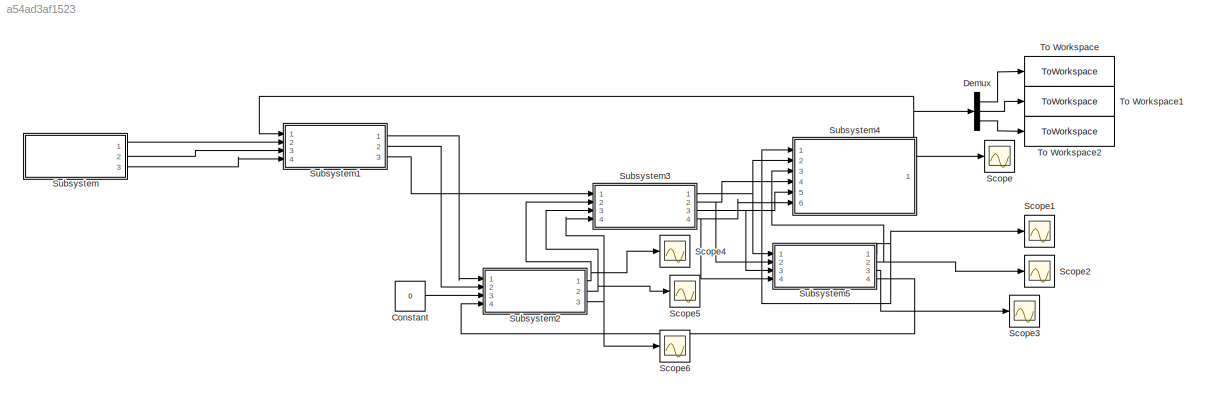
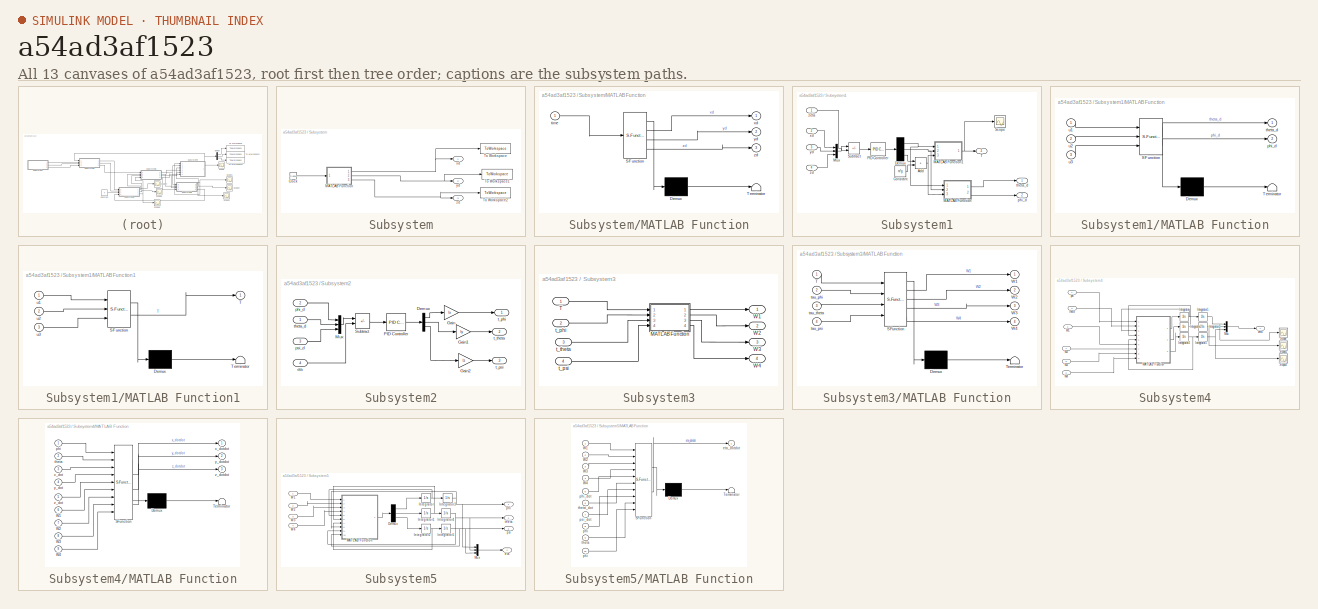
[diagram: thumbnail index - all 13 canvases of the model, root first then tree order]
MODEL slx_a54ad3af1523
KIND model
CONFIG AbsTol = auto
CONFIG EnableMultiTasking = off
CONFIG FixedStep = auto
CONFIG MaxStep = auto
CONFIG MinStep = auto
CONFIG RelTol = 1e-3
CONFIG SampleTimeConstraint = Unconstrained
CONFIG SolverName = VariableStepAuto
CONFIG StartTime = 0.0
CONFIG StopTime = 32
BLOCK [Constant] Constant
  NameLocation = left
  Value = 0
BLOCK [Demux] Demux
  Outputs = 3
  Ports = [1, 3]
BLOCK [Scope] Scope
  Floating = off
  NumInputPorts = 1
  Ports = [1]
  ScopeSpecificationString = Simulink.scopes.TimeScopeBlockCfg('CurrentConfiguration', extmgr.ConfigurationSet(extmgr.Configuration('Core','General UI',true),extmgr.Configuration('Core','Source UI',true),extmgr.Configuration('Sources','WiredSimulink',true),extmgr.Configuration('Visuals','Time Domain',true,'SerializedDisplays',{struct('MinYLimReal','-6.04302','MaxYLimReal','49.57626','YLabelReal','','MinYLimMag','0.00000','Max...<+1395ch>
BLOCK [Scope] Scope1
  Floating = off
  NumInputPorts = 1
  Ports = [1]
  ScopeSpecificationString = Simulink.scopes.TimeScopeBlockCfg('CurrentConfiguration', extmgr.ConfigurationSet(extmgr.Configuration('Core','General UI',true),extmgr.Configuration('Core','Source UI',true),extmgr.Configuration('Sources','WiredSimulink',true,'DataLoggingVariableName','ScopeData1'),extmgr.Configuration('Visuals','Time Domain',true,'SerializedDisplays',{struct('MinYLimReal','-0.30404','MaxYLimReal','0.15066','YLab...<+1371ch>
BLOCK [Scope] Scope2
  Floating = off
  NumInputPorts = 1
  Ports = [1]
  ScopeSpecificationString = Simulink.scopes.TimeScopeBlockCfg('CurrentConfiguration', extmgr.ConfigurationSet(extmgr.Configuration('Core','General UI',true),extmgr.Configuration('Core','Source UI',true),extmgr.Configuration('Sources','WiredSimulink',true,'DataLoggingVariableName','ScopeData2'),extmgr.Configuration('Visuals','Time Domain',true,'SerializedDisplays',{struct('MinYLimReal','-0.15808','MaxYLimReal','0.33995','YLab...<+1371ch>
BLOCK [Scope] Scope3
  Floating = off
  NumInputPorts = 1
  Ports = [1]
  ScopeSpecificationString = Simulink.scopes.TimeScopeBlockCfg('CurrentConfiguration', extmgr.ConfigurationSet(extmgr.Configuration('Core','General UI',true),extmgr.Configuration('Core','Source UI',true),extmgr.Configuration('Sources','WiredSimulink',true,'DataLoggingVariableName','ScopeData3'),extmgr.Configuration('Visuals','Time Domain',true,'SerializedDisplays',{struct('MinYLimReal','-0.0233','MaxYLimReal','0.0205','YLabel...<+1365ch>
BLOCK [Scope] Scope4
  Floating = off
  NumInputPorts = 1
  Ports = [1]
  ScopeSpecificationString = Simulink.scopes.TimeScopeBlockCfg('CurrentConfiguration', extmgr.ConfigurationSet(extmgr.Configuration('Core','General UI',true),extmgr.Configuration('Core','Source UI',true),extmgr.Configuration('Sources','WiredSimulink',true,'DataLoggingVariableName','ScopeData1'),extmgr.Configuration('Visuals','Time Domain',true,'SerializedDisplays',{struct('MinYLimReal','-4.19883','MaxYLimReal','4.6573','YLabe...<+1367ch>
BLOCK [Scope] Scope5
  Floating = off
  NumInputPorts = 1
  Ports = [1]
  ScopeSpecificationString = Simulink.scopes.TimeScopeBlockCfg('CurrentConfiguration', extmgr.ConfigurationSet(extmgr.Configuration('Core','General UI',true),extmgr.Configuration('Core','Source UI',true),extmgr.Configuration('Sources','WiredSimulink',true,'DataLoggingVariableName','ScopeData2'),extmgr.Configuration('Visuals','Time Domain',true,'SerializedDisplays',{struct('MinYLimReal','-2.30515','MaxYLimReal','3.28313','YLab...<+1371ch>
BLOCK [Scope] Scope6
  Floating = off
  NumInputPorts = 1
  Ports = [1]
  ScopeSpecificationString = Simulink.scopes.TimeScopeBlockCfg('CurrentConfiguration', extmgr.ConfigurationSet(extmgr.Configuration('Core','General UI',true),extmgr.Configuration('Core','Source UI',true),extmgr.Configuration('Sources','WiredSimulink',true,'DataLoggingVariableName','ScopeData3'),extmgr.Configuration('Visuals','Time Domain',true,'SerializedDisplays',{struct('MinYLimReal','-0.00333','MaxYLimReal','0.00248','YLab...<+1371ch>
BLOCK [SubSystem] Subsystem
  Ports = [0, 3]
  RequestExecContextInheritance = off
BLOCK [Clock] Subsystem/Clock
BLOCK [SubSystem] Subsystem/MATLAB Function
  ErrorFcn = Stateflow.Translate.translate
  PermitHierarchicalResolution = ExplicitOnly
  Ports = [1, 3]
  RequestExecContextInheritance = off
  SFBlockType = MATLAB Function
  TreatAsAtomicUnit = on
BLOCK [Demux] Subsystem/MATLAB Function/ Demux 
  Outputs = 1
  Ports = [1, 1]
BLOCK [S-Function] Subsystem/MATLAB Function/ SFunction 
  EnableBusSupport = on
  FunctionName = sf_sfun
  PortCounts = [1 4]
  Ports = [1, 4]
  SFcnIsStateOwnerBlock = off
  SFunctionDeploymentMode = off
  Tag = Stateflow S-Function 6
BLOCK [Terminator] Subsystem/MATLAB Function/ Terminator 
BLOCK [Inport] Subsystem/MATLAB Function/time
BLOCK [Outport] Subsystem/MATLAB Function/xd
BLOCK [Outport] Subsystem/MATLAB Function/yd
  Port = 2
BLOCK [Outport] Subsystem/MATLAB Function/zd
  Port = 3
BLOCK [ToWorkspace] Subsystem/To Workspace
  FixptAsFi = on
  MaxDataPoints = inf
  Ports = [1]
  SampleTime = -1
  SaveFormat = Timeseries
  VariableName = xd
BLOCK [ToWorkspace] Subsystem/To Workspace1
  FixptAsFi = on
  MaxDataPoints = inf
  Ports = [1]
  SampleTime = -1
  SaveFormat = Timeseries
  VariableName = yd
BLOCK [ToWorkspace] Subsystem/To Workspace2
  FixptAsFi = on
  MaxDataPoints = inf
  Ports = [1]
  SampleTime = -1
  SaveFormat = Timeseries
  VariableName = zd
BLOCK [Outport] Subsystem/xd
BLOCK [Outport] Subsystem/yd
  Port = 2
BLOCK [Outport] Subsystem/zd
  Port = 3
BLOCK [SubSystem] Subsystem1
  Ports = [4, 3]
  RequestExecContextInheritance = off
BLOCK [Sum] Subsystem1/Add
  IconShape = rectangular
  Ports = [2, 1]
BLOCK [Constant] Subsystem1/Constant
  Value = m*g
BLOCK [Demux] Subsystem1/Demux
  Outputs = 3
  Ports = [1, 3]
BLOCK [SubSystem] Subsystem1/MATLAB Function
  ErrorFcn = Stateflow.Translate.translate
  PermitHierarchicalResolution = ExplicitOnly
  Ports = [3, 2]
  RequestExecContextInheritance = off
  SFBlockType = MATLAB Function
  TreatAsAtomicUnit = on
BLOCK [Demux] Subsystem1/MATLAB Function/ Demux 
  Outputs = 1
  Ports = [1, 1]
BLOCK [S-Function] Subsystem1/MATLAB Function/ SFunction 
  EnableBusSupport = on
  FunctionName = sf_sfun
  PortCounts = [3 3]
  Ports = [3, 3]
  SFcnIsStateOwnerBlock = off
  SFunctionDeploymentMode = off
  Tag = Stateflow S-Function 2
BLOCK [Terminator] Subsystem1/MATLAB Function/ Terminator 
BLOCK [Outport] Subsystem1/MATLAB Function/phi_d
  Port = 2
BLOCK [Outport] Subsystem1/MATLAB Function/theta_d
BLOCK [Inport] Subsystem1/MATLAB Function/u1
BLOCK [Inport] Subsystem1/MATLAB Function/u2
  Port = 2
BLOCK [Inport] Subsystem1/MATLAB Function/u3
  Port = 3
BLOCK [SubSystem] Subsystem1/MATLAB Function1
  ErrorFcn = Stateflow.Translate.translate
  PermitHierarchicalResolution = ExplicitOnly
  Ports = [3, 1]
  RequestExecContextInheritance = off
  SFBlockType = MATLAB Function
  TreatAsAtomicUnit = on
BLOCK [Demux] Subsystem1/MATLAB Function1/ Demux 
  Outputs = 1
  Ports = [1, 1]
BLOCK [S-Function] Subsystem1/MATLAB Function1/ SFunction 
  EnableBusSupport = on
  FunctionName = sf_sfun
  PortCounts = [3 2]
  Ports = [3, 2]
  SFcnIsStateOwnerBlock = off
  SFunctionDeploymentMode = off
  Tag = Stateflow S-Function 1
BLOCK [Terminator] Subsystem1/MATLAB Function1/ Terminator 
BLOCK [Outport] Subsystem1/MATLAB Function1/T
BLOCK [Inport] Subsystem1/MATLAB Function1/u1
BLOCK [Inport] Subsystem1/MATLAB Function1/u2
  Port = 2
BLOCK [Inport] Subsystem1/MATLAB Function1/u3
  Port = 3
BLOCK [Mux] Subsystem1/Mux
  DisplayOption = bar
  Inputs = 3
  Ports = [3, 1]
BLOCK [Reference] Subsystem1/PID Controller  REF=pid_lib/PID Controller
  Ports = [1, 1]
  SourceBlock = pid_lib/PID Controller
  SourceProductBaseCode = SL
  SourceType = PID 1dof
BLOCK [Scope] Subsystem1/Scope
  Floating = off
  NumInputPorts = 1
  Ports = [1]
  ScopeSpecificationString = Simulink.scopes.TimeScopeBlockCfg('CurrentConfiguration', extmgr.ConfigurationSet(extmgr.Configuration('Core','General UI',true),extmgr.Configuration('Core','Source UI',true),extmgr.Configuration('Sources','WiredSimulink',true,'DataLoggingVariableName','ScopeData4'),extmgr.Configuration('Visuals','Time Domain',true,'SerializedDisplays',{struct('MinYLimReal','-67195610907516045897872348863829514774...<+1913ch>
BLOCK [Sum] Subsystem1/Subtract
  IconShape = rectangular
  Inputs = +-
  Ports = [2, 1]
BLOCK [Outport] Subsystem1/T
  Port = 3
BLOCK [Outport] Subsystem1/phi_d
  Port = 2
BLOCK [Outport] Subsystem1/theta_d
BLOCK [Inport] Subsystem1/xd
  Port = 2
BLOCK [Inport] Subsystem1/yd
  Port = 3
BLOCK [Inport] Subsystem1/zd
  Port = 4
BLOCK [Inport] Subsystem1/zeta
BLOCK [SubSystem] Subsystem2
  Ports = [4, 3]
  RequestExecContextInheritance = off
BLOCK [Demux] Subsystem2/Demux
  Outputs = 3
  Ports = [1, 3]
BLOCK [Gain] Subsystem2/Gain
  Gain = Ix
BLOCK [Gain] Subsystem2/Gain1
  Gain = Iy
BLOCK [Gain] Subsystem2/Gain2
  Gain = Iz
BLOCK [Mux] Subsystem2/Mux
  DisplayOption = bar
  Inputs = 3
  Ports = [3, 1]
BLOCK [Reference] Subsystem2/PID Controller  REF=pid_lib/PID Controller
  Ports = [1, 1]
  SourceBlock = pid_lib/PID Controller
  SourceProductBaseCode = SL
  SourceType = PID 1dof
BLOCK [Sum] Subsystem2/Subtract
  IconShape = rectangular
  Inputs = +-
  Ports = [2, 1]
BLOCK [Inport] Subsystem2/eta
  Port = 4
BLOCK [Inport] Subsystem2/phi_d
  Port = 2
BLOCK [Inport] Subsystem2/psi_d
  Port = 3
BLOCK [Outport] Subsystem2/t_phi
BLOCK [Outport] Subsystem2/t_psi
  Port = 3
BLOCK [Outport] Subsystem2/t_theta
  Port = 2
BLOCK [Inport] Subsystem2/theta_d
BLOCK [SubSystem] Subsystem3
  Ports = [4, 4]
  RequestExecContextInheritance = off
BLOCK [SubSystem] Subsystem3/MATLAB Function
  ErrorFcn = Stateflow.Translate.translate
  PermitHierarchicalResolution = ExplicitOnly
  Ports = [4, 4]
  RequestExecContextInheritance = off
  SFBlockType = MATLAB Function
  TreatAsAtomicUnit = on
BLOCK [Demux] Subsystem3/MATLAB Function/ Demux 
  Outputs = 1
  Ports = [1, 1]
BLOCK [S-Function] Subsystem3/MATLAB Function/ SFunction 
  EnableBusSupport = on
  FunctionName = sf_sfun
  PortCounts = [4 5]
  Ports = [4, 5]
  SFcnIsStateOwnerBlock = off
  SFunctionDeploymentMode = off
  Tag = Stateflow S-Function 3
BLOCK [Terminator] Subsystem3/MATLAB Function/ Terminator 
BLOCK [Inport] Subsystem3/MATLAB Function/T
BLOCK [Outport] Subsystem3/MATLAB Function/W1
BLOCK [Outport] Subsystem3/MATLAB Function/W2
  Port = 2
BLOCK [Outport] Subsystem3/MATLAB Function/W3
  Port = 3
BLOCK [Outport] Subsystem3/MATLAB Function/W4
  Port = 4
BLOCK [Inport] Subsystem3/MATLAB Function/tau_phi
  Port = 2
BLOCK [Inport] Subsystem3/MATLAB Function/tau_psi
  Port = 4
BLOCK [Inport] Subsystem3/MATLAB Function/tau_theta
  Port = 3
BLOCK [Inport] Subsystem3/T
BLOCK [Outport] Subsystem3/W1
BLOCK [Outport] Subsystem3/W2
  Port = 2
BLOCK [Outport] Subsystem3/W3
  Port = 3
BLOCK [Outport] Subsystem3/W4
  Port = 4
BLOCK [Inport] Subsystem3/t_phi
  Port = 2
BLOCK [Inport] Subsystem3/t_psi
  Port = 4
BLOCK [Inport] Subsystem3/t_theta
  Port = 3
BLOCK [SubSystem] Subsystem4
  Ports = [6, 1]
  RequestExecContextInheritance = off
BLOCK [Integrator] Subsystem4/Integrator
  Ports = [1, 1]
BLOCK [Integrator] Subsystem4/Integrator1
  Ports = [1, 1]
BLOCK [Integrator] Subsystem4/Integrator2
  Ports = [1, 1]
BLOCK [Integrator] Subsystem4/Integrator3
  Ports = [1, 1]
BLOCK [Integrator] Subsystem4/Integrator4
  Ports = [1, 1]
BLOCK [Integrator] Subsystem4/Integrator5
  InitialCondition = 3
  Ports = [1, 1]
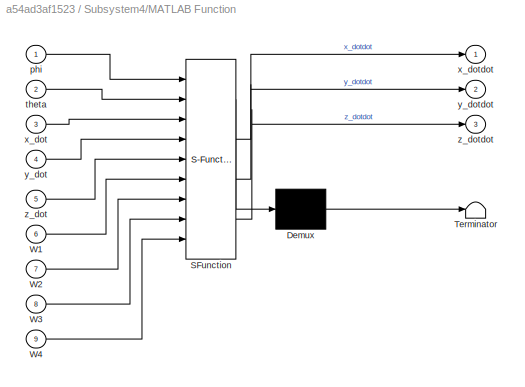
BLOCK [SubSystem] Subsystem4/MATLAB Function
  ErrorFcn = Stateflow.Translate.translate
  PermitHierarchicalResolution = ExplicitOnly
  Ports = [9, 3]
  RequestExecContextInheritance = off
  SFBlockType = MATLAB Function
  TreatAsAtomicUnit = on
BLOCK [Demux] Subsystem4/MATLAB Function/ Demux 
  Outputs = 1
  Ports = [1, 1]
BLOCK [S-Function] Subsystem4/MATLAB Function/ SFunction 
  EnableBusSupport = on
  FunctionName = sf_sfun
  PortCounts = [9 4]
  Ports = [9, 4]
  SFcnIsStateOwnerBlock = off
  SFunctionDeploymentMode = off
  Tag = Stateflow S-Function 5
BLOCK [Terminator] Subsystem4/MATLAB Function/ Terminator 
BLOCK [Inport] Subsystem4/MATLAB Function/W1
  Port = 6
BLOCK [Inport] Subsystem4/MATLAB Function/W2
  Port = 7
BLOCK [Inport] Subsystem4/MATLAB Function/W3
  Port = 8
BLOCK [Inport] Subsystem4/MATLAB Function/W4
  Port = 9
BLOCK [Inport] Subsystem4/MATLAB Function/phi
BLOCK [Inport] Subsystem4/MATLAB Function/theta
  Port = 2
BLOCK [Inport] Subsystem4/MATLAB Function/x_dot
  Port = 3
BLOCK [Outport] Subsystem4/MATLAB Function/x_dotdot
BLOCK [Inport] Subsystem4/MATLAB Function/y_dot
  Port = 4
BLOCK [Outport] Subsystem4/MATLAB Function/y_dotdot
  Port = 2
BLOCK [Inport] Subsystem4/MATLAB Function/z_dot
  Port = 5
BLOCK [Outport] Subsystem4/MATLAB Function/z_dotdot
  Port = 3
BLOCK [Mux] Subsystem4/Mux
  DisplayOption = bar
  Inputs = 3
  Ports = [3, 1]
BLOCK [Scope] Subsystem4/Scope
  Floating = off
  NumInputPorts = 1
  Ports = [1]
  ScopeSpecificationString = Simulink.scopes.TimeScopeBlockCfg('CurrentConfiguration', extmgr.ConfigurationSet(extmgr.Configuration('Core','General UI',true),extmgr.Configuration('Core','Source UI',true),extmgr.Configuration('Sources','WiredSimulink',true,'DataLoggingVariableName','ScopeData2'),extmgr.Configuration('Visuals','Time Domain',true,'SerializedDisplays',{struct('MinYLimReal','-1.81783','MaxYLimReal','11.54953','YLa...<+1374ch>
BLOCK [Scope] Subsystem4/Scope1
  Floating = off
  NumInputPorts = 1
  Ports = [1]
  ScopeSpecificationString = Simulink.scopes.TimeScopeBlockCfg('CurrentConfiguration', extmgr.ConfigurationSet(extmgr.Configuration('Core','General UI',true),extmgr.Configuration('Core','Source UI',true),extmgr.Configuration('Sources','WiredSimulink',true,'DataLoggingVariableName','ScopeData3'),extmgr.Configuration('Visuals','Time Domain',true,'SerializedDisplays',{struct('MinYLimReal','-1.38938','MaxYLimReal','12.50445','YLa...<+1403ch>
BLOCK [Scope] Subsystem4/Scope2
  Floating = off
  NumInputPorts = 1
  Ports = [1]
  ScopeSpecificationString = Simulink.scopes.TimeScopeBlockCfg('CurrentConfiguration', extmgr.ConfigurationSet(extmgr.Configuration('Core','General UI',true),extmgr.Configuration('Core','Source UI',true),extmgr.Configuration('Sources','WiredSimulink',true,'DataLoggingVariableName','ScopeData4'),extmgr.Configuration('Visuals','Time Domain',true,'SerializedDisplays',{struct('MinYLimReal','-46442720324644088626546259917381396074...<+1900ch>
BLOCK [Inport] Subsystem4/W1
  Port = 2
BLOCK [Inport] Subsystem4/W2
  Port = 4
BLOCK [Inport] Subsystem4/W3
  Port = 5
BLOCK [Inport] Subsystem4/W4
  Port = 6
BLOCK [Inport] Subsystem4/phi
BLOCK [Inport] Subsystem4/theta
  Port = 3
BLOCK [Outport] Subsystem4/zeta
BLOCK [SubSystem] Subsystem5
  Ports = [4, 4]
  RequestExecContextInheritance = off
BLOCK [Demux] Subsystem5/Demux
  Outputs = 3
  Ports = [1, 3]
BLOCK [Integrator] Subsystem5/Integrator
  Ports = [1, 1]
BLOCK [Integrator] Subsystem5/Integrator1
  Ports = [1, 1]
BLOCK [Integrator] Subsystem5/Integrator2
  Ports = [1, 1]
BLOCK [Integrator] Subsystem5/Integrator3
  Ports = [1, 1]
BLOCK [Integrator] Subsystem5/Integrator4
  Ports = [1, 1]
BLOCK [Integrator] Subsystem5/Integrator5
  Ports = [1, 1]
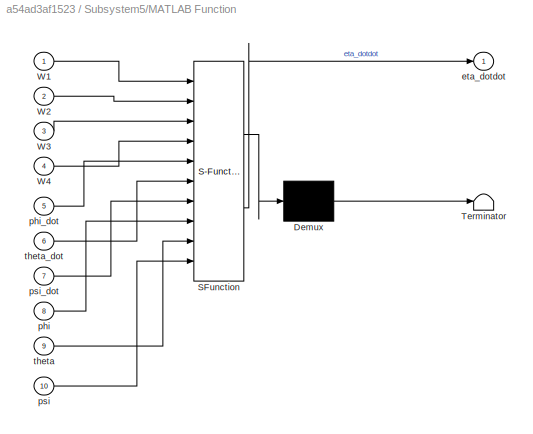
BLOCK [SubSystem] Subsystem5/MATLAB Function
  ErrorFcn = Stateflow.Translate.translate
  PermitHierarchicalResolution = ExplicitOnly
  Ports = [10, 1]
  RequestExecContextInheritance = off
  SFBlockType = MATLAB Function
  TreatAsAtomicUnit = on
BLOCK [Demux] Subsystem5/MATLAB Function/ Demux 
  Outputs = 1
  Ports = [1, 1]
BLOCK [S-Function] Subsystem5/MATLAB Function/ SFunction 
  EnableBusSupport = on
  FunctionName = sf_sfun
  Parameters = b,k,l
  PortCounts = [10 2]
  Ports = [10, 2]
  SFcnIsStateOwnerBlock = off
  SFunctionDeploymentMode = off
  Tag = Stateflow S-Function 4
BLOCK [Terminator] Subsystem5/MATLAB Function/ Terminator 
BLOCK [Inport] Subsystem5/MATLAB Function/W1
BLOCK [Inport] Subsystem5/MATLAB Function/W2
  Port = 2
BLOCK [Inport] Subsystem5/MATLAB Function/W3
  Port = 3
BLOCK [Inport] Subsystem5/MATLAB Function/W4
  Port = 4
BLOCK [Outport] Subsystem5/MATLAB Function/eta_dotdot
BLOCK [Inport] Subsystem5/MATLAB Function/phi
  Port = 8
BLOCK [Inport] Subsystem5/MATLAB Function/phi_dot
  Port = 5
BLOCK [Inport] Subsystem5/MATLAB Function/psi
  Port = 10
BLOCK [Inport] Subsystem5/MATLAB Function/psi_dot
  Port = 7
BLOCK [Inport] Subsystem5/MATLAB Function/theta
  Port = 9
BLOCK [Inport] Subsystem5/MATLAB Function/theta_dot
  Port = 6
BLOCK [Mux] Subsystem5/Mux
  DisplayOption = bar
  Inputs = 3
  Ports = [3, 1]
BLOCK [Inport] Subsystem5/W1
BLOCK [Inport] Subsystem5/W2
  Port = 2
BLOCK [Inport] Subsystem5/W3
  Port = 3
BLOCK [Inport] Subsystem5/W4
  Port = 4
BLOCK [Outport] Subsystem5/eta
  Port = 4
BLOCK [Outport] Subsystem5/phi
BLOCK [Outport] Subsystem5/psi
  Port = 3
BLOCK [Outport] Subsystem5/theta
  Port = 2
BLOCK [ToWorkspace] To Workspace
  FixptAsFi = on
  MaxDataPoints = inf
  Ports = [1]
  SampleTime = -1
  SaveFormat = Timeseries
  VariableName = x
BLOCK [ToWorkspace] To Workspace1
  FixptAsFi = on
  MaxDataPoints = inf
  Ports = [1]
  SampleTime = -1
  SaveFormat = Timeseries
  VariableName = y
BLOCK [ToWorkspace] To Workspace2
  FixptAsFi = on
  MaxDataPoints = inf
  Ports = [1]
  SampleTime = -1
  SaveFormat = Timeseries
  VariableName = z
LINE Constant:1 -> Subsystem2:3
LINE Demux:1 -> To Workspace:1
LINE Demux:2 -> To Workspace1:1
LINE Demux:3 -> To Workspace2:1
LINE Subsystem/Clock:1 -> Subsystem/MATLAB Function:1
NET Subsystem/MATLAB Function:1 -> Subsystem/To Workspace:1, Subsystem/xd:1
NET Subsystem/MATLAB Function:2 -> Subsystem/To Workspace1:1, Subsystem/yd:1
NET Subsystem/MATLAB Function:3 -> Subsystem/To Workspace2:1, Subsystem/zd:1
NET Subsystem1/Add:1 -> Subsystem1/MATLAB Function1:3, Subsystem1/MATLAB Function:3
LINE Subsystem1/Constant:1 -> Subsystem1/Add:2
NET Subsystem1/Demux:1 -> Subsystem1/MATLAB Function1:1, Subsystem1/MATLAB Function:1
NET Subsystem1/Demux:2 -> Subsystem1/MATLAB Function1:2, Subsystem1/MATLAB Function:2
LINE Subsystem1/Demux:3 -> Subsystem1/Add:1
NET Subsystem1/MATLAB Function1:1 -> Subsystem1/Scope:1, Subsystem1/T:1
LINE Subsystem1/MATLAB Function:1 -> Subsystem1/theta_d:1
LINE Subsystem1/MATLAB Function:2 -> Subsystem1/phi_d:1
LINE Subsystem1/Mux:1 -> Subsystem1/Subtract:1
LINE Subsystem1/PID Controller:1 -> Subsystem1/Demux:1
LINE Subsystem1/Subtract:1 -> Subsystem1/PID Controller:1
LINE Subsystem1/xd:1 -> Subsystem1/Mux:1
LINE Subsystem1/yd:1 -> Subsystem1/Mux:2
LINE Subsystem1/zd:1 -> Subsystem1/Mux:3
LINE Subsystem1/zeta:1 -> Subsystem1/Subtract:2
LINE Subsystem1:1 -> Subsystem2:1
LINE Subsystem1:2 -> Subsystem2:2
LINE Subsystem1:3 -> Subsystem3:1
LINE Subsystem2/Demux:1 -> Subsystem2/Gain:1
LINE Subsystem2/Demux:2 -> Subsystem2/Gain1:1
LINE Subsystem2/Demux:3 -> Subsystem2/Gain2:1
LINE Subsystem2/Gain1:1 -> Subsystem2/t_theta:1
LINE Subsystem2/Gain2:1 -> Subsystem2/t_psi:1
LINE Subsystem2/Gain:1 -> Subsystem2/t_phi:1
LINE Subsystem2/Mux:1 -> Subsystem2/Subtract:1
LINE Subsystem2/PID Controller:1 -> Subsystem2/Demux:1
LINE Subsystem2/Subtract:1 -> Subsystem2/PID Controller:1
LINE Subsystem2/eta:1 -> Subsystem2/Subtract:2
LINE Subsystem2/phi_d:1 -> Subsystem2/Mux:1
LINE Subsystem2/psi_d:1 -> Subsystem2/Mux:3
LINE Subsystem2/theta_d:1 -> Subsystem2/Mux:2
NET Subsystem2:1 -> Scope4:1, Subsystem3:2
NET Subsystem2:2 -> Scope5:1, Subsystem3:3
NET Subsystem2:3 -> Scope6:1, Subsystem3:4
LINE Subsystem3/MATLAB Function:1 -> Subsystem3/W1:1
LINE Subsystem3/MATLAB Function:2 -> Subsystem3/W2:1
LINE Subsystem3/MATLAB Function:3 -> Subsystem3/W3:1
LINE Subsystem3/MATLAB Function:4 -> Subsystem3/W4:1
LINE Subsystem3/T:1 -> Subsystem3/MATLAB Function:1
LINE Subsystem3/t_phi:1 -> Subsystem3/MATLAB Function:2
LINE Subsystem3/t_psi:1 -> Subsystem3/MATLAB Function:4
LINE Subsystem3/t_theta:1 -> Subsystem3/MATLAB Function:3
NET Subsystem3:1 -> Subsystem4:2, Subsystem5:1
NET Subsystem3:2 -> Subsystem4:4, Subsystem5:2
NET Subsystem3:3 -> Subsystem4:5, Subsystem5:3
NET Subsystem3:4 -> Subsystem4:6, Subsystem5:4
NET Subsystem4/Integrator1:1 -> Subsystem4/Mux:1, Subsystem4/Scope:1
NET Subsystem4/Integrator2:1 -> Subsystem4/Integrator3:1, Subsystem4/MATLAB Function:4
NET Subsystem4/Integrator3:1 -> Subsystem4/Mux:2, Subsystem4/Scope1:1
NET Subsystem4/Integrator4:1 -> Subsystem4/Integrator5:1, Subsystem4/MATLAB Function:5
NET Subsystem4/Integrator5:1 -> Subsystem4/Mux:3, Subsystem4/Scope2:1
NET Subsystem4/Integrator:1 -> Subsystem4/Integrator1:1, Subsystem4/MATLAB Function:3
LINE Subsystem4/MATLAB Function:1 -> Subsystem4/Integrator:1
LINE Subsystem4/MATLAB Function:2 -> Subsystem4/Integrator2:1
LINE Subsystem4/MATLAB Function:3 -> Subsystem4/Integrator4:1
LINE Subsystem4/Mux:1 -> Subsystem4/zeta:1
LINE Subsystem4/W1:1 -> Subsystem4/MATLAB Function:6
LINE Subsystem4/W2:1 -> Subsystem4/MATLAB Function:7
LINE Subsystem4/W3:1 -> Subsystem4/MATLAB Function:8
LINE Subsystem4/W4:1 -> Subsystem4/MATLAB Function:9
LINE Subsystem4/phi:1 -> Subsystem4/MATLAB Function:1
LINE Subsystem4/theta:1 -> Subsystem4/MATLAB Function:2
NET Subsystem4:1 -> Demux:1, Scope:1, Subsystem1:1
LINE Subsystem5/Demux:1 -> Subsystem5/Integrator:1
LINE Subsystem5/Demux:2 -> Subsystem5/Integrator1:1
LINE Subsystem5/Demux:3 -> Subsystem5/Integrator2:1
NET Subsystem5/Integrator1:1 -> Subsystem5/Integrator4:1, Subsystem5/MATLAB Function:6
NET Subsystem5/Integrator2:1 -> Subsystem5/Integrator5:1, Subsystem5/MATLAB Function:7
NET Subsystem5/Integrator3:1 -> Subsystem5/MATLAB Function:8, Subsystem5/Mux:1, Subsystem5/phi:1
NET Subsystem5/Integrator4:1 -> Subsystem5/MATLAB Function:9, Subsystem5/Mux:2, Subsystem5/theta:1
NET Subsystem5/Integrator5:1 -> Subsystem5/MATLAB Function:10, Subsystem5/Mux:3, Subsystem5/psi:1
NET Subsystem5/Integrator:1 -> Subsystem5/Integrator3:1, Subsystem5/MATLAB Function:5
LINE Subsystem5/MATLAB Function:1 -> Subsystem5/Demux:1
LINE Subsystem5/Mux:1 -> Subsystem5/eta:1
LINE Subsystem5/W1:1 -> Subsystem5/MATLAB Function:1
LINE Subsystem5/W2:1 -> Subsystem5/MATLAB Function:2
LINE Subsystem5/W3:1 -> Subsystem5/MATLAB Function:3
LINE Subsystem5/W4:1 -> Subsystem5/MATLAB Function:4
NET Subsystem5:1 -> Scope1:1, Subsystem4:1
NET Subsystem5:2 -> Scope2:1, Subsystem4:3
LINE Subsystem5:3 -> Scope3:1
LINE Subsystem5:4 -> Subsystem2:4
LINE Subsystem:1 -> Subsystem1:2
LINE Subsystem:2 -> Subsystem1:3
LINE Subsystem:3 -> Subsystem1:4
note: NET lines group one-source signal fan-out (src -> all destinations, sorted); 1:1 wires keep LINE
CHART Subsystem1/MATLAB Function1 states=1 transitions=1
  STATE_LABEL 'eML_blk_kernel()'
  STATE_LABEL 'SCRIPT:\nfunction T = fcn(u1, u2, u3)\nT = sqrt(u1^2 + u2^2 + u3^2);\nend\n'
CHART Subsystem1/MATLAB Function states=1 transitions=1
  STATE_LABEL 'eML_blk_kernel()'
  STATE_LABEL 'SCRIPT:\nfunction [theta_d, phi_d] = fcn(u1,u2,u3)\ntheta_d = atan(u1/(u3));\nphi_d = atan((-u2*cos(theta_d))/(u3));\nend\n'
CHART Subsystem3/MATLAB Function states=1 transitions=1
  STATE_LABEL 'eML_blk_kernel()'
  STATE_LABEL 'SCRIPT:\nfunction [W1,W2,W3,W4] = fcn(T, tau_phi, tau_theta, tau_psi)\nk = 2.98*10^-6;\nb = 1.14*10^-7;\nl = 0.225;\n\nW1 = T/(4*k) - tau_theta/(2*k*l) - tau_psi/(4*b);\nW2 = T/(4*k) - tau_phi/(2*k*l) + tau_psi/(4*b);\nW3 = T/(4*k) + tau_theta/(2*k*l) - tau_psi/(4*b);\nW4 = T/(4*k) + tau_phi/(2*k*l) + tau_psi/(4*b);\nend\n'
CHART Subsystem5/MATLAB Function states=1 transitions=1
  STATE_LABEL 'eML_blk_kernel()'
  STATE_LABEL 'SCRIPT:\nfunction eta_dotdot  = fcn(W1, W2, W3, W4, phi_dot, theta_dot, psi_dot, phi, theta, psi, l, k, b)\nk = 2.980000000000000e-06;\nl = 0.225;\nb = 1.14 * 10^-7;\n\n\n\n\nIx = 4.856*10^-3;\nIy = 4.856*10^-3;\nIz = 8.801*10^-3;\n\ntau_phi = l * k * (-W2 + W4);\ntau_theta = l* k* (-W1 + W3);\ntau_psi = b * (-W1 +W2 -W3 + W4);\n\nJ = zeros(3,3);\nC = zeros(3,3);\n\nJ(1,1) = Ix;\nJ(1,3) = -Ix * sin(theta);\nJ(2,2) = Iy...<+1440ch>'
CHART Subsystem4/MATLAB Function states=1 transitions=1
  STATE_LABEL 'eML_blk_kernel()'
  STATE_LABEL 'SCRIPT:\nfunction [x_dotdot, y_dotdot, z_dotdot] = fcn(phi, theta, x_dot, y_dot, z_dot, W1, W2, W3, W4)\nm = 0.468;\ng = 9.81;\nAx = 0.25;\nAy = 0.25;\nAz = 0.25;\nk = 2.98*10^-6;\n\nT = k*(W1+W2+W3+W4);\n\nx_dotdot = T/m*cos(phi)*sin(theta) - Ax/m * x_dot;\ny_dotdot = T/m * -sin(phi) - Ay/m * y_dot;\nz_dotdot = T/m*cos(phi)*cos(theta) - g - Az/m * z_dot;\nend\n'
CHART Subsystem/MATLAB Function states=1 transitions=1
  STATE_LABEL 'eML_blk_kernel()'
  STATE_LABEL 'SCRIPT:\nfunction [xd, yd, zd] = fcn(time)\nif time <= 10\nxd = time;\nyd = 0;\nzd = (time * 0.5) + 3;\nelseif time <= 18 \nxd = cos(time - 10) + 9;\nyd = sin(time - 10);\nzd = 8 + (time-10)*0.5;\nelse\nxd = (cos(8)) + 9 - (time - 18);\nyd = (sin(8));\nzd = 12 - ((time-18)*9/14);\nend\n'
CHART  states=0 transitions=0
CHART  states=0 transitions=0
CHART  states=0 transitions=0
CHART  states=0 transitions=0
CHART  states=0 transitions=0
CHART  states=0 transitions=0
